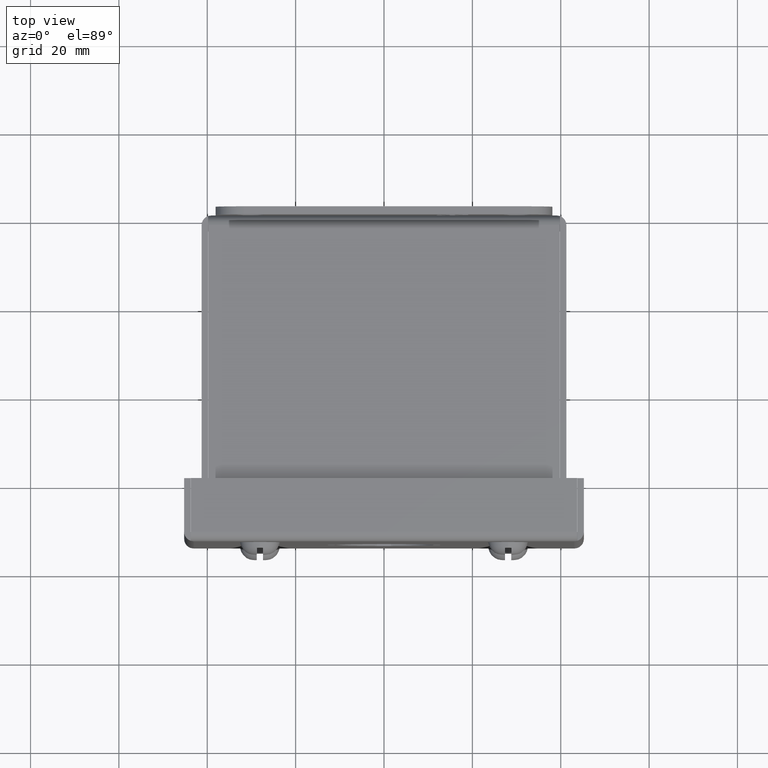
[diagram: clean part render]
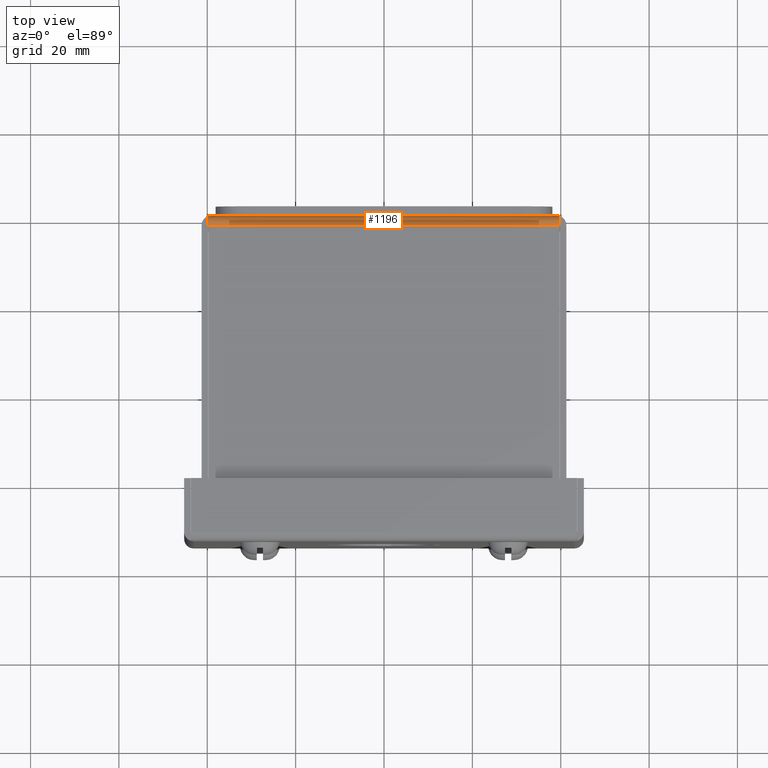
[diagram: same view with one face highlighted and labeled with its STEP entity id]
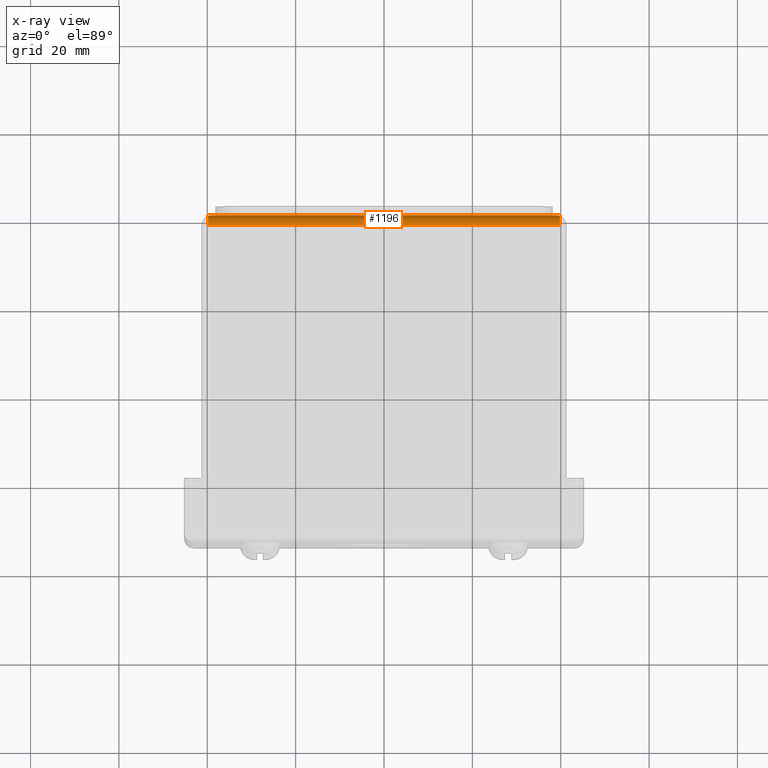
[diagram: x-ray of the same camera — body ghosted, the highlighted face saturated]
A machine part, top view. The second image highlights one B-rep face of the part: STEP entity #1196.
The next image is the same camera in x-ray: the body ghosted, the highlighted face saturated — about 0% of this face is hidden behind the body in this view.
In plain terms, the highlighted cylindrical surface (edge-blend (fillet) strip) has radius 2.1844 mm, axis along (-1, 0, -0).
Its self-contained STEP definition (entity closure, byte-faithful):
#34 = DIRECTION ( 'NONE',  ( 0.0000000000000000000, 0.0000000000000000000, 1.000000000000000000 ) ) ;
#226 = VERTEX_POINT ( 'NONE', #3932 ) ;
#1196 = ADVANCED_FACE ( 'NONE', ( #9340 ), #2884, .T. ) ;
#1248 = DIRECTION ( 'NONE',  ( -1.000000000000000000, 3.749151804555340178E-33, -6.123031769111889989E-17 ) ) ;
#1345 = VERTEX_POINT ( 'NONE', #8610 ) ;
#1365 = CARTESIAN_POINT ( 'NONE',  ( -1.567212598425197001, -0.005037045508448416593, 1.692999999999995620 ) ) ;
#1384 = EDGE_LOOP ( 'NONE', ( #3688, #2892, #4648, #5045, #12280, #10926 ) ) ;
#1549 = VECTOR ( 'NONE', #9591, 39.37007874015748143 ) ;
#1647 = CARTESIAN_POINT ( 'NONE',  ( 1.558137402864426813, -0.001695691019681366818, 1.683671519606391165 ) ) ;
#1945 = EDGE_CURVE ( 'NONE', #9332, #6362, #8771, .T. ) ;
#2791 = CIRCLE ( 'NONE', #13889, 0.08600000000000011802 ) ;
#2884 = CYLINDRICAL_SURFACE ( 'NONE', #13533, 0.08600000000000011802 ) ;
#2892 = ORIENTED_EDGE ( 'NONE', *, *, #11236, .F. ) ;
#2991 = CARTESIAN_POINT ( 'NONE',  ( -10.90200000000000102, -0.08600000000000000699, 1.750000000000000222 ) ) ;
#3265 = DIRECTION ( 'NONE',  ( 1.000000000000000000, -3.749151804555340178E-33, 6.123031769111889989E-17 ) ) ;
#3296 = CARTESIAN_POINT ( 'NONE',  ( 1.567212598425197001, -0.005037045508455135177, 1.693000000000002503 ) ) ;
#3543 = CARTESIAN_POINT ( 'NONE',  ( -1.539000000000003920, 4.370956789862821150E-15, 1.663999999999997925 ) ) ;
#3688 = ORIENTED_EDGE ( 'NONE', *, *, #4141, .T. ) ;
#3932 = CARTESIAN_POINT ( 'NONE',  ( -1.567212598425197001, -0.08599999999999974332, 1.750000000000000222 ) ) ;
#4141 = EDGE_CURVE ( 'NONE', #12349, #226, #2791, .T. ) ;
#4375 = CIRCLE ( 'NONE', #10049, 0.08600000000000011802 ) ;
#4648 = ORIENTED_EDGE ( 'NONE', *, *, #6542, .F. ) ;
#5045 = ORIENTED_EDGE ( 'NONE', *, *, #1945, .T. ) ;
#5535 = EDGE_CURVE ( 'NONE', #6362, #9156, #8396, .T. ) ;
#6020 = CARTESIAN_POINT ( 'NONE',  ( -1.539000000000003920, 4.370956789862821150E-15, 1.663999999999997925 ) ) ;
#6362 = VERTEX_POINT ( 'NONE', #12845 ) ;
#6542 = EDGE_CURVE ( 'NONE', #9332, #1345, #4375, .T. ) ;
#6934 = CARTESIAN_POINT ( 'NONE',  ( -1.567212598425197001, -0.08600000000000000699, 1.664000000000000146 ) ) ;
#7049 = CARTESIAN_POINT ( 'NONE',  ( -1.567212598425197001, -0.005037045508448416593, 1.692999999999995620 ) ) ;
#7071 = CARTESIAN_POINT ( 'NONE',  ( -1.558137402864431031, -0.001695691019679442576, 1.683671519606381617 ) ) ;
#7178 = CARTESIAN_POINT ( 'NONE',  ( 1.538999999999999702, 0.0000000000000000000, 1.664000000000000590 ) ) ;
#7546 = VECTOR ( 'NONE', #11599, 39.37007874015748143 ) ;
#7586 = DIRECTION ( 'NONE',  ( 0.0000000000000000000, -2.044915285955078007E-14, 1.000000000000000000 ) ) ;
#7604 = EDGE_CURVE ( 'NONE', #9156, #12349, #7699, .T. ) ;
#7699 =( BOUNDED_CURVE ( )  B_SPLINE_CURVE ( 3, ( #6020, #13198, #7071, #1365 ),
 .UNSPECIFIED., .F., .F. ) 
 B_SPLINE_CURVE_WITH_KNOTS ( ( 4, 4 ),
 ( 4.712388980384646153, 5.056339979452484812 ),
 .UNSPECIFIED. ) 
 CURVE ( )  GEOMETRIC_REPRESENTATION_ITEM ( )  RATIONAL_B_SPLINE_CURVE ( ( 1.000000000000000000, 0.9901657495367152118, 0.9901657495367152118, 1.000000000000000000 ) ) 
 REPRESENTATION_ITEM ( '' )  );
#8167 = CARTESIAN_POINT ( 'NONE',  ( 1.567212598425197001, -0.005037045508455135177, 1.693000000000002503 ) ) ;
#8396 = LINE ( 'NONE', #12730, #7546 ) ;
#8610 = CARTESIAN_POINT ( 'NONE',  ( 1.567212598425197001, -0.08599999999999974332, 1.750000000000000222 ) ) ;
#8771 =( BOUNDED_CURVE ( )  B_SPLINE_CURVE ( 3, ( #8167, #1647, #9443, #7178 ),
 .UNSPECIFIED., .F., .F. ) 
 B_SPLINE_CURVE_WITH_KNOTS ( ( 4, 4 ),
 ( 4.368437981316761309, 4.712388980384671910 ),
 .UNSPECIFIED. ) 
 CURVE ( )  GEOMETRIC_REPRESENTATION_ITEM ( )  RATIONAL_B_SPLINE_CURVE ( ( 1.000000000000000000, 0.9901657495367112150, 0.9901657495367112150, 1.000000000000000000 ) ) 
 REPRESENTATION_ITEM ( '' )  );
#8858 = CARTESIAN_POINT ( 'NONE',  ( 1.567212598425197001, -0.08600000000000000699, 1.664000000000000368 ) ) ;
#9156 = VERTEX_POINT ( 'NONE', #3543 ) ;
#9332 = VERTEX_POINT ( 'NONE', #3296 ) ;
#9340 = FACE_OUTER_BOUND ( 'NONE', #1384, .T. ) ;
#9443 = CARTESIAN_POINT ( 'NONE',  ( 1.548639801599723587, -1.778366594227934156E-16, 1.673908844346021940 ) ) ;
#9591 = DIRECTION ( 'NONE',  ( -1.000000000000000000, -0.0000000000000000000, -1.252911389499300075E-17 ) ) ;
#9990 = DIRECTION ( 'NONE',  ( 1.000000000000000000, -3.749151804555340178E-33, 6.123031769111889989E-17 ) ) ;
#10049 = AXIS2_PLACEMENT_3D ( 'NONE', #8858, #3265, #7586 ) ;
#10926 = ORIENTED_EDGE ( 'NONE', *, *, #7604, .T. ) ;
#11236 = EDGE_CURVE ( 'NONE', #1345, #226, #11721, .T. ) ;
#11599 = DIRECTION ( 'NONE',  ( -1.000000000000000000, 3.749151804555340178E-33, -6.123031769111889989E-17 ) ) ;
#11721 = LINE ( 'NONE', #2991, #1549 ) ;
#12280 = ORIENTED_EDGE ( 'NONE', *, *, #5535, .T. ) ;
#12349 = VERTEX_POINT ( 'NONE', #7049 ) ;
#12730 = CARTESIAN_POINT ( 'NONE',  ( -1.539000000000000146, 0.0000000000000000000, 1.663999999999999702 ) ) ;
#12845 = CARTESIAN_POINT ( 'NONE',  ( 1.538999999999999702, 0.0000000000000000000, 1.664000000000000590 ) ) ;
#13162 = CARTESIAN_POINT ( 'NONE',  ( -1.539000000000000146, -0.08600000000000000699, 1.664000000000000146 ) ) ;
#13198 = CARTESIAN_POINT ( 'NONE',  ( -1.548639801599729360, 4.501345390398804991E-16, 1.673908844346014391 ) ) ;
#13254 = DIRECTION ( 'NONE',  ( 0.0000000000000000000, -1.766965635436912104E-14, 1.000000000000000000 ) ) ;
#13533 = AXIS2_PLACEMENT_3D ( 'NONE', #13162, #1248, #34 ) ;
#13889 = AXIS2_PLACEMENT_3D ( 'NONE', #6934, #9990, #13254 ) ;